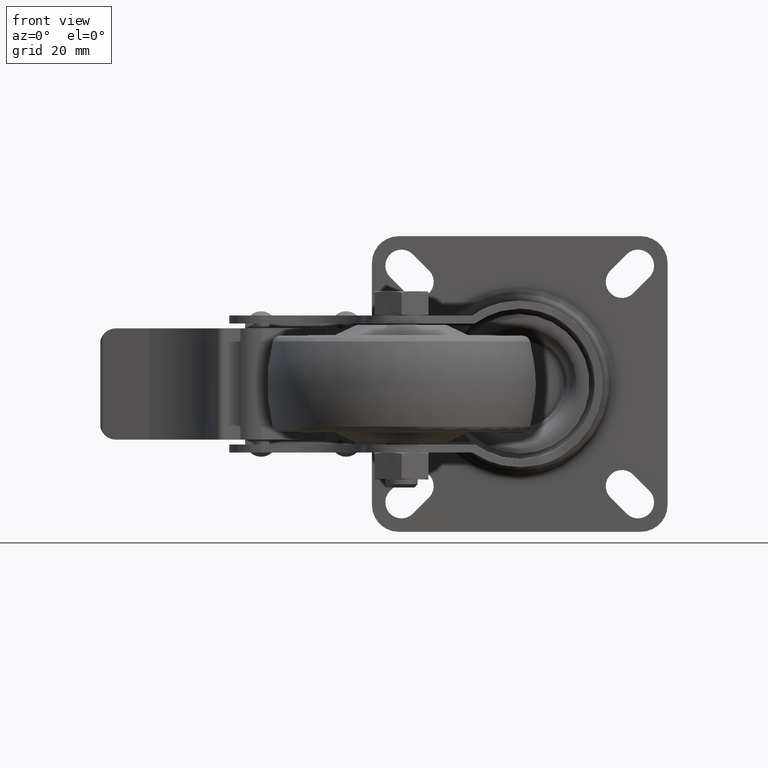
[diagram: clean part render]
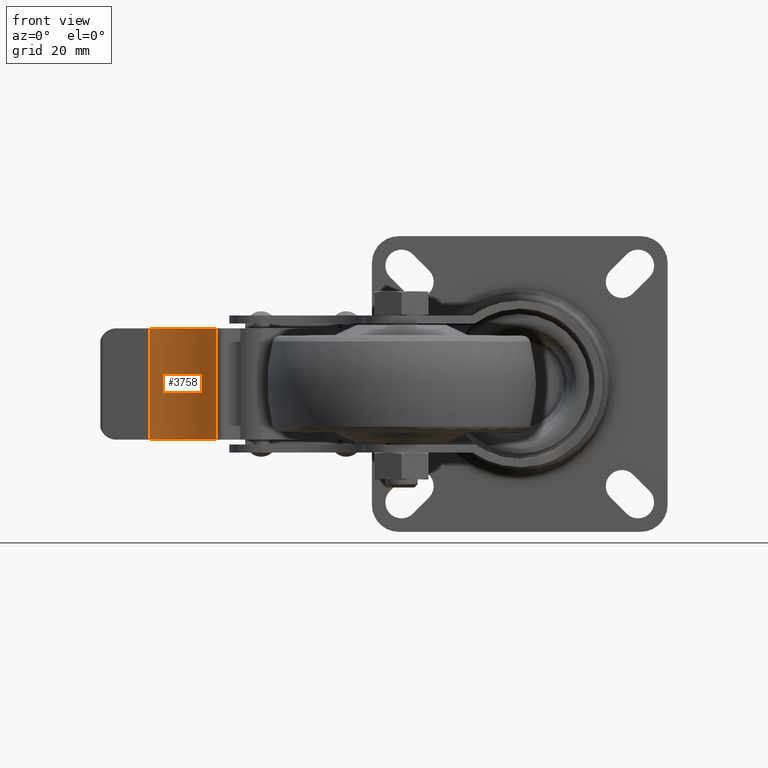
[diagram: same view with one face highlighted and labeled with its STEP entity id]
A machine part, front view. The second image highlights one B-rep face of the part: STEP entity #3758.
In plain terms, the highlighted cylindrical surface (partial cylindrical patch) has radius 16.8 mm, axis along (0, 0, 1).
Its self-contained STEP definition (entity closure, byte-faithful):
#501=FACE_OUTER_BOUND('',#762,.T.);
#762=EDGE_LOOP('',(#3197,#3198,#3199,#3200));
#1049=LINE('',#6828,#1261);
#1050=LINE('',#6832,#1262);
#1261=VECTOR('',#5420,1000.);
#1262=VECTOR('',#5425,1000.);
#1453=CIRCLE('',#4353,16.8);
#1481=CIRCLE('',#4403,16.8);
#1772=VERTEX_POINT('',#6681);
#1773=VERTEX_POINT('',#6683);
#1823=VERTEX_POINT('',#6826);
#1824=VERTEX_POINT('',#6830);
#2229=EDGE_CURVE('',#1773,#1772,#1453,.T.);
#2302=EDGE_CURVE('',#1773,#1823,#1049,.T.);
#2303=EDGE_CURVE('',#1823,#1824,#1481,.T.);
#2304=EDGE_CURVE('',#1772,#1824,#1050,.T.);
#3197=ORIENTED_EDGE('',*,*,#2303,.F.);
#3198=ORIENTED_EDGE('',*,*,#2302,.F.);
#3199=ORIENTED_EDGE('',*,*,#2229,.T.);
#3200=ORIENTED_EDGE('',*,*,#2304,.T.);
#3590=CYLINDRICAL_SURFACE('',#4402,16.8);
#3758=ADVANCED_FACE('',(#501),#3590,.F.);
#4353=AXIS2_PLACEMENT_3D('',#6684,#5277,#5278);
#4402=AXIS2_PLACEMENT_3D('',#6829,#5421,#5422);
#4403=AXIS2_PLACEMENT_3D('',#6831,#5423,#5424);
#5277=DIRECTION('center_axis',(0.,0.,1.));
#5278=DIRECTION('ref_axis',(1.,0.,0.));
#5420=DIRECTION('',(0.,0.,-1.));
#5421=DIRECTION('center_axis',(0.,0.,1.));
#5422=DIRECTION('ref_axis',(-1.,0.,0.));
#5423=DIRECTION('center_axis',(0.,0.,1.));
#5424=DIRECTION('ref_axis',(1.,0.,0.));
#5425=DIRECTION('',(0.,0.,-1.));
#6681=CARTESIAN_POINT('',(-20.7442828698473,2.13840828482601,10.35));
#6683=CARTESIAN_POINT('',(-8.40907870818704,-8.64458871800507,10.35));
#6684=CARTESIAN_POINT('Origin',(-24.229999995106,-14.2960000137005,10.35));
#6826=CARTESIAN_POINT('',(-8.40907870818704,-8.64458871800507,-10.35));
#6828=CARTESIAN_POINT('',(-8.40907870818704,-8.64458871800507,10.35));
#6829=CARTESIAN_POINT('Origin',(-24.229999995106,-14.2960000137005,10.35));
#6830=CARTESIAN_POINT('',(-20.7442828698473,2.13840828482601,-10.35));
#6831=CARTESIAN_POINT('Origin',(-24.229999995106,-14.2960000137005,-10.35));
#6832=CARTESIAN_POINT('',(-20.7442828698473,2.13840828482601,10.35));